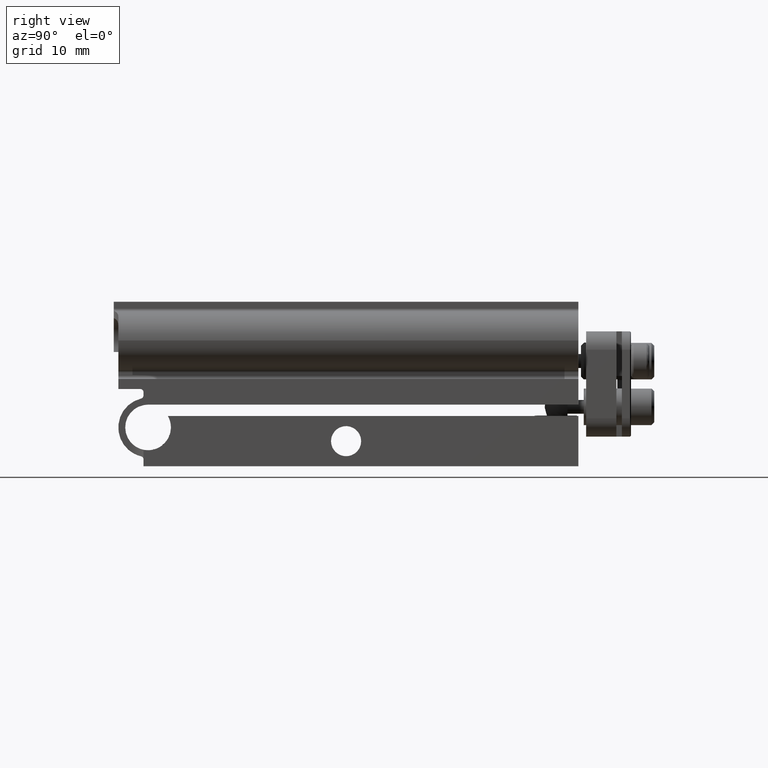
[diagram: clean part render]
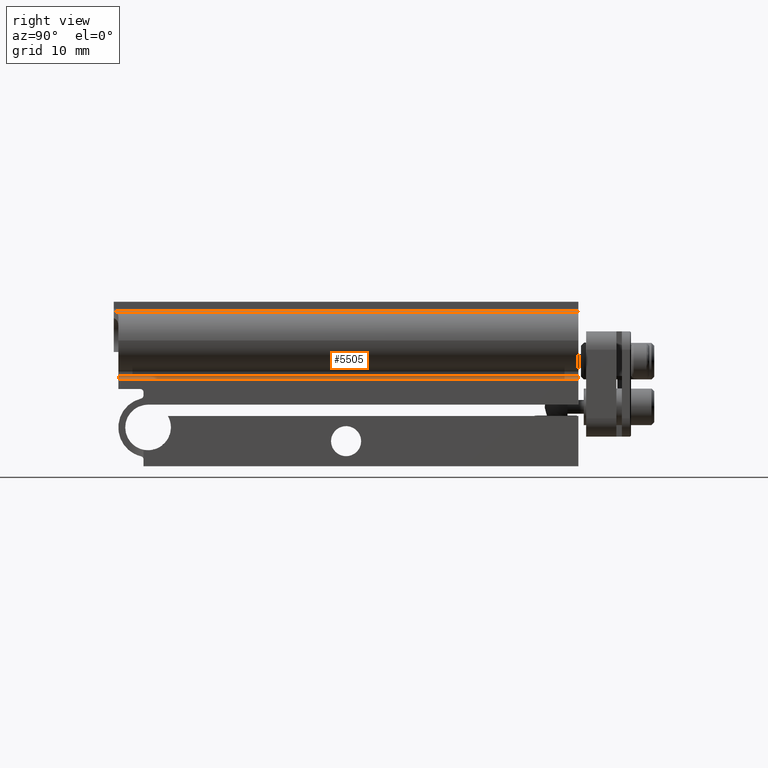
[diagram: same view with one face highlighted and labeled with its STEP entity id]
A machine part, right view. The second image highlights one B-rep face of the part: STEP entity #5505.
In plain terms, the highlighted cylindrical surface (edge-blend (fillet) strip) has radius 0.35 mm, axis along (0, 1, -0).
Its self-contained STEP definition (entity closure, byte-faithful):
#290 = DIRECTION ( 'NONE',  ( -1.000000000000000000, 0.000000000000000000, 0.000000000000000000 ) ) ;
#978 = LINE ( 'NONE', #9329, #1533 ) ;
#1031 = VERTEX_POINT ( 'NONE', #8187 ) ;
#1211 = VECTOR ( 'NONE', #9554, 1000.000000000000000 ) ;
#1533 = VECTOR ( 'NONE', #9437, 1000.000000000000000 ) ;
#1810 = DIRECTION ( 'NONE',  ( -9.823725385216688828E-17, -1.000000000000000000, 5.551115123125782086E-17 ) ) ;
#1906 = VERTEX_POINT ( 'NONE', #10703 ) ;
#2822 = LINE ( 'NONE', #9494, #1211 ) ;
#2883 = AXIS2_PLACEMENT_3D ( 'NONE', #8442, #1810, #290 ) ;
#3152 = ORIENTED_EDGE ( 'NONE', *, *, #10280, .F. ) ;
#3491 = EDGE_CURVE ( 'NONE', #9080, #5832, #2822, .T. ) ;
#3511 = DIRECTION ( 'NONE',  ( 9.823725385216688828E-17, 1.000000000000000000, -5.551115123125782086E-17 ) ) ;
#3934 = CIRCLE ( 'NONE', #2883, 0.3499999999999996447 ) ;
#3998 = ORIENTED_EDGE ( 'NONE', *, *, #3491, .T. ) ;
#4104 = EDGE_CURVE ( 'NONE', #1031, #5832, #3934, .T. ) ;
#4645 = CARTESIAN_POINT ( 'NONE',  ( 22.50000000000000711, 25.40000000000000568, 0.5499999999999967137 ) ) ;
#4715 = DIRECTION ( 'NONE',  ( -1.000000000000000000, 0.000000000000000000, 0.000000000000000000 ) ) ;
#5505 = ADVANCED_FACE ( 'NONE', ( #9863 ), #7152, .F. ) ;
#5694 = CIRCLE ( 'NONE', #10717, 0.3499999999999996447 ) ;
#5832 = VERTEX_POINT ( 'NONE', #4645 ) ;
#6503 = ORIENTED_EDGE ( 'NONE', *, *, #4104, .F. ) ;
#6767 = CARTESIAN_POINT ( 'NONE',  ( 22.50000000000000711, -24.89999999999999858, 0.8999999999999994671 ) ) ;
#7152 = CYLINDRICAL_SURFACE ( 'NONE', #9051, 0.3499999999999996447 ) ;
#7466 = ORIENTED_EDGE ( 'NONE', *, *, #9984, .F. ) ;
#7911 = EDGE_LOOP ( 'NONE', ( #3152, #3998, #6503, #7466 ) ) ;
#8021 = CARTESIAN_POINT ( 'NONE',  ( 22.50000000000001066, 25.40000000000000568, 0.8999999999999965805 ) ) ;
#8187 = CARTESIAN_POINT ( 'NONE',  ( 22.15000000000000924, 25.40000000000000568, 0.8999999999999965805 ) ) ;
#8442 = CARTESIAN_POINT ( 'NONE',  ( 22.50000000000001066, 25.40000000000000568, 0.8999999999999965805 ) ) ;
#9051 = AXIS2_PLACEMENT_3D ( 'NONE', #8021, #10458, #4715 ) ;
#9080 = VERTEX_POINT ( 'NONE', #9308 ) ;
#9308 = CARTESIAN_POINT ( 'NONE',  ( 22.50000000000000711, -24.89999999999999858, 0.5500000000000007105 ) ) ;
#9329 = CARTESIAN_POINT ( 'NONE',  ( 22.15000000000000924, 25.40000000000000568, 0.8999999999999965805 ) ) ;
#9437 = DIRECTION ( 'NONE',  ( 9.823725385216688828E-17, 1.000000000000000000, -5.551115123125782086E-17 ) ) ;
#9494 = CARTESIAN_POINT ( 'NONE',  ( 22.50000000000000711, 25.40000000000000568, 0.5499999999999967137 ) ) ;
#9554 = DIRECTION ( 'NONE',  ( 5.555567147270891917E-33, 1.000000000000000000, -5.551115123125780853E-17 ) ) ;
#9863 = FACE_OUTER_BOUND ( 'NONE', #7911, .T. ) ;
#9984 = EDGE_CURVE ( 'NONE', #1906, #1031, #978, .T. ) ;
#10129 = DIRECTION ( 'NONE',  ( -1.000000000000000000, 0.000000000000000000, 0.000000000000000000 ) ) ;
#10280 = EDGE_CURVE ( 'NONE', #9080, #1906, #5694, .T. ) ;
#10458 = DIRECTION ( 'NONE',  ( 9.823725385216688828E-17, 1.000000000000000000, -5.551115123125782086E-17 ) ) ;
#10703 = CARTESIAN_POINT ( 'NONE',  ( 22.15000000000000568, -24.89999999999999858, 0.8999999999999994671 ) ) ;
#10717 = AXIS2_PLACEMENT_3D ( 'NONE', #6767, #3511, #10129 ) ;